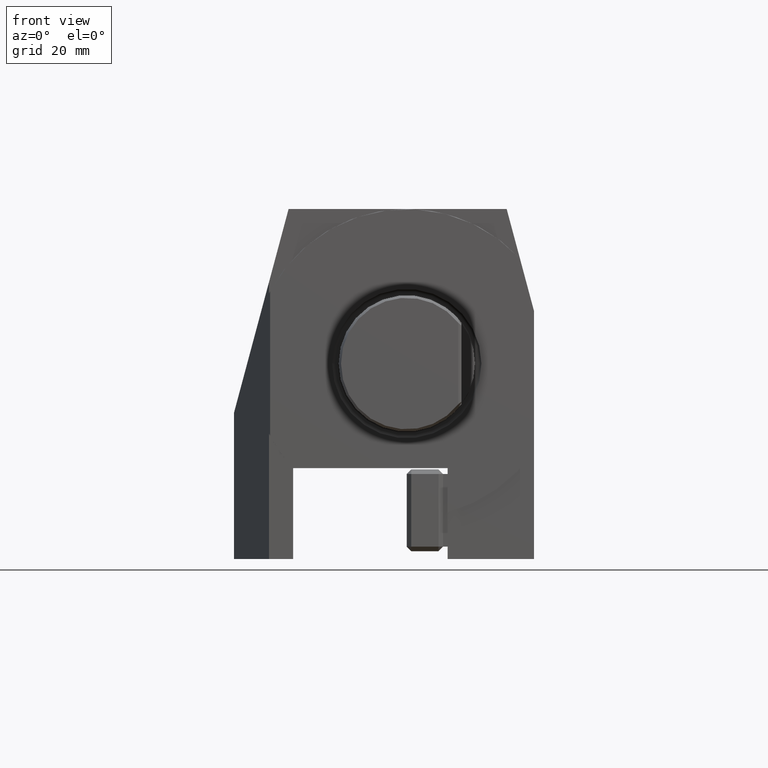
[diagram: clean part render]
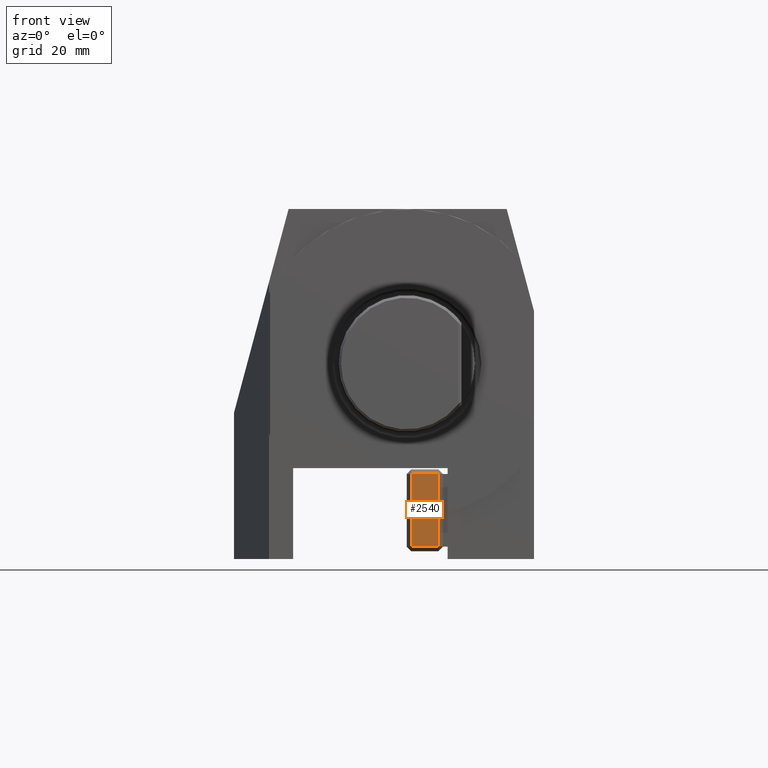
[diagram: same view with one face highlighted and labeled with its STEP entity id]
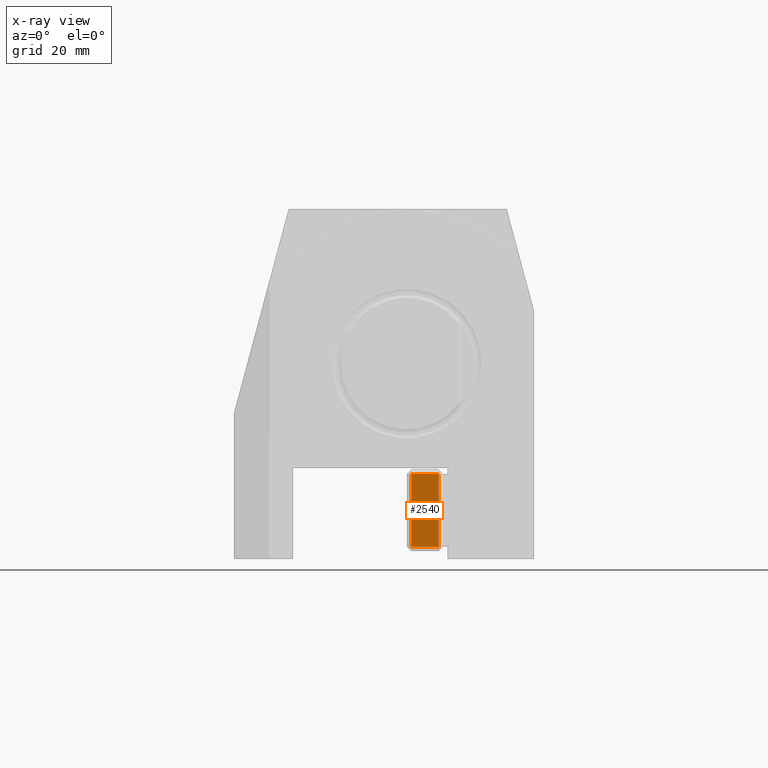
[diagram: x-ray of the same camera — body ghosted, the highlighted face saturated]
A machine part, front view. The second image highlights one B-rep face of the part: STEP entity #2540.
The next image is the same camera in x-ray: the body ghosted, the highlighted face saturated — about 0% of this face is hidden behind the body in this view.
In plain terms, the highlighted planar face has unit normal (0, 1, 0).
Its self-contained STEP definition (entity closure, byte-faithful):
#439 = EDGE_CURVE ( 'NONE', #7845, #5144, #6717, .T. ) ;
#877 = ORIENTED_EDGE ( 'NONE', *, *, #6225, .T. ) ;
#1079 = DIRECTION ( 'NONE',  ( -1.550203531853473095E-49, 0.000000000000000000, 1.000000000000000000 ) ) ;
#1556 = VERTEX_POINT ( 'NONE', #11179 ) ;
#1594 = DIRECTION ( 'NONE',  ( -1.550203531853473095E-49, 0.000000000000000000, 1.000000000000000000 ) ) ;
#2199 = ORIENTED_EDGE ( 'NONE', *, *, #9354, .T. ) ;
#2498 = DIRECTION ( 'NONE',  ( 8.090834635592244094E-33, 1.000000000000000000, 1.254244042773750504E-81 ) ) ;
#2540 = ADVANCED_FACE ( 'Defeature completata1_5', ( #3989 ), #9063, .F. ) ;
#2770 = CARTESIAN_POINT ( 'NONE',  ( 6.999999999999984013, -1.734723475976807094E-14, -32.29999999999997584 ) ) ;
#3500 = VECTOR ( 'NONE', #15365, 1000.000000000000000 ) ;
#3989 = FACE_OUTER_BOUND ( 'NONE', #6057, .T. ) ;
#4346 = CARTESIAN_POINT ( 'NONE',  ( 6.999999999999984013, -1.734723475976807094E-14, -24.29999999999998295 ) ) ;
#4669 = DIRECTION ( 'NONE',  ( 1.550203531853473095E-49, 0.000000000000000000, -1.000000000000000000 ) ) ;
#5144 = VERTEX_POINT ( 'NONE', #13814 ) ;
#5320 = EDGE_CURVE ( 'NONE', #1556, #7845, #11089, .T. ) ;
#6057 = EDGE_LOOP ( 'NONE', ( #15263, #12026, #2199, #877 ) ) ;
#6225 = EDGE_CURVE ( 'NONE', #7730, #1556, #6486, .T. ) ;
#6250 = CARTESIAN_POINT ( 'NONE',  ( 0.9999999999999991118, -1.734723475976807094E-14, -40.29999999999996874 ) ) ;
#6486 = LINE ( 'NONE', #15688, #3500 ) ;
#6717 = LINE ( 'NONE', #10715, #13749 ) ;
#7719 = AXIS2_PLACEMENT_3D ( 'NONE', #14111, #2498, #1079 ) ;
#7730 = VERTEX_POINT ( 'NONE', #4346 ) ;
#7845 = VERTEX_POINT ( 'NONE', #6250 ) ;
#7868 = VECTOR ( 'NONE', #1594, 1000.000000000000000 ) ;
#9063 = PLANE ( 'NONE',  #7719 ) ;
#9354 = EDGE_CURVE ( 'NONE', #5144, #7730, #12962, .T. ) ;
#10715 = CARTESIAN_POINT ( 'NONE',  ( 3.999999999999991562, -1.734723475976807094E-14, -40.29999999999996874 ) ) ;
#11089 = LINE ( 'NONE', #13555, #14573 ) ;
#11179 = CARTESIAN_POINT ( 'NONE',  ( 0.9999999999999991118, -1.734723475976807094E-14, -24.29999999999998295 ) ) ;
#12026 = ORIENTED_EDGE ( 'NONE', *, *, #439, .T. ) ;
#12962 = LINE ( 'NONE', #2770, #7868 ) ;
#13555 = CARTESIAN_POINT ( 'NONE',  ( 0.9999999999999991118, -1.734723475976807094E-14, -32.29999999999997584 ) ) ;
#13749 = VECTOR ( 'NONE', #15593, 1000.000000000000000 ) ;
#13814 = CARTESIAN_POINT ( 'NONE',  ( 6.999999999999984013, -1.734723475976807094E-14, -40.29999999999996874 ) ) ;
#14111 = CARTESIAN_POINT ( 'NONE',  ( 3.999999999999991562, -1.734723475976807094E-14, -32.29999999999997584 ) ) ;
#14573 = VECTOR ( 'NONE', #4669, 1000.000000000000000 ) ;
#15263 = ORIENTED_EDGE ( 'NONE', *, *, #5320, .T. ) ;
#15365 = DIRECTION ( 'NONE',  ( -1.000000000000000000, 8.090834635592246831E-33, -1.493403808601844500E-49 ) ) ;
#15593 = DIRECTION ( 'NONE',  ( 1.000000000000000000, -8.090834635592246831E-33, 1.493403808601844500E-49 ) ) ;
#15688 = CARTESIAN_POINT ( 'NONE',  ( 3.999999999999991562, -1.734723475976807094E-14, -24.29999999999998295 ) ) ;